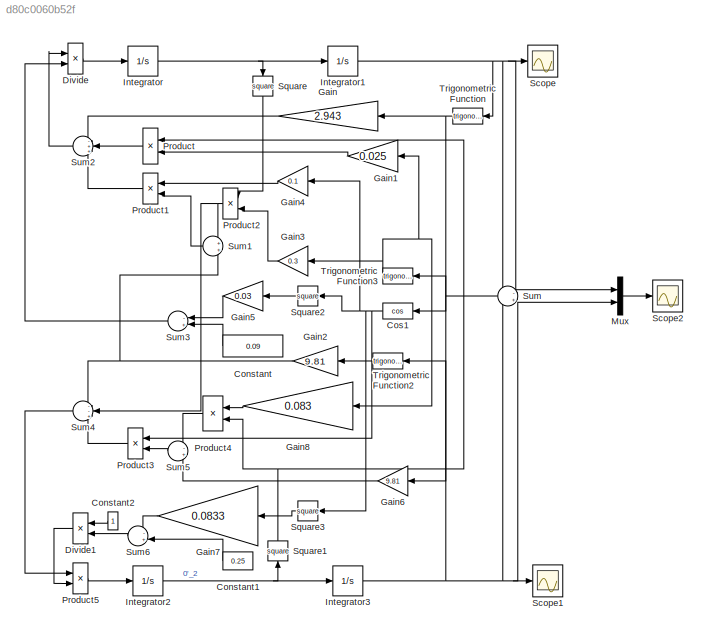
MODEL slx_d80c0060b52f
KIND model
CONFIG AbsTol = auto
CONFIG EnableMultiTasking = off
CONFIG FixedStep = auto
CONFIG MaxStep = auto
CONFIG MinStep = auto
CONFIG RelTol = 1e-3
CONFIG SampleTimeConstraint = Unconstrained
CONFIG SolverName = VariableStepAuto
CONFIG StartTime = 0.0
CONFIG StopTime = 10.0
BLOCK [Constant] Constant
  NameLocation = top
  Value = 0.09
BLOCK [Constant] Constant1
  NameLocation = top
  Value = 0.25
BLOCK [Constant] Constant2
  NameLocation = top
BLOCK [Trigonometry] Cos1
  NameLocation = top
  Operator = cos
BLOCK [Product] Divide
  Inputs = */
BLOCK [Product] Divide1
  Inputs = */
  NameLocation = top
BLOCK [Gain] Gain
  Gain = 2.943
  NameLocation = top
BLOCK [Gain] Gain1
  Gain = 0.025
  NameLocation = top
BLOCK [Gain] Gain2
  Gain = 9.81
  NameLocation = top
BLOCK [Gain] Gain3
  Gain = 0.3
  NameLocation = top
BLOCK [Gain] Gain4
  Gain = 0.1
  NameLocation = top
BLOCK [Gain] Gain5
  Gain = 0.03
  NameLocation = top
BLOCK [Gain] Gain6
  Gain = 9.81
  NameLocation = top
BLOCK [Gain] Gain7
  Gain = 0.0833
  NameLocation = top
BLOCK [Gain] Gain8
  Gain = 0.083
  NameLocation = top
BLOCK [Integrator] Integrator
BLOCK [Integrator] Integrator1
BLOCK [Integrator] Integrator2
BLOCK [Integrator] Integrator3
  InitialCondition = 0.35
BLOCK [Mux] Mux
  DisplayOption = bar
  Inputs = 2
BLOCK [Product] Product
  NameLocation = top
BLOCK [Product] Product1
  NameLocation = top
BLOCK [Product] Product2
  NameLocation = top
BLOCK [Product] Product3
  NameLocation = top
BLOCK [Product] Product4
  NameLocation = top
BLOCK [Product] Product5
BLOCK [Scope] Scope
  Floating = off
  NumInputPorts = 1
  ScopeSpecificationString = Simulink.scopes.TimeScopeBlockCfg('CurrentConfiguration', extmgr.ConfigurationSet(extmgr.Configuration('Core','General UI',true),extmgr.Configuration('Core','Source UI',true),extmgr.Configuration('Sources','WiredSimulink',true,'DataLoggingVariableName','ScopeData1'),extmgr.Configuration('Visuals','Time Domain',true,'SerializedDisplays',{struct('MinYLimReal','-0.22476','MaxYLimReal','0.22286','YLab...<+1391ch>
BLOCK [Scope] Scope1
  Floating = off
  NumInputPorts = 1
  ScopeSpecificationString = Simulink.scopes.TimeScopeBlockCfg('CurrentConfiguration', extmgr.ConfigurationSet(extmgr.Configuration('Core','General UI',true),extmgr.Configuration('Core','Source UI',true),extmgr.Configuration('Sources','WiredSimulink',true,'DataLoggingVariableName','ScopeData2'),extmgr.Configuration('Visuals','Time Domain',true,'SerializedDisplays',{struct('MinYLimReal','-0.43502','MaxYLimReal','0.43722','YLab...<+1399ch>
BLOCK [Scope] Scope2
  Floating = off
  NumInputPorts = 1
  ScopeSpecificationString = Simulink.scopes.TimeScopeBlockCfg('CurrentConfiguration', extmgr.ConfigurationSet(extmgr.Configuration('Core','General UI',true),extmgr.Configuration('Core','Source UI',true),extmgr.Configuration('Sources','WiredSimulink',true),extmgr.Configuration('Visuals','Time Domain',true,'SerializedDisplays',{struct('MinYLimReal','-0.73519','MaxYLimReal','0.76043','YLabelReal','','MinYLimMag','0.00000','MaxY...<+1558ch>
BLOCK [Math] Square
  NameLocation = left
  Operator = square
BLOCK [Math] Square1
  NameLocation = right
  Operator = square
BLOCK [Math] Square2
  NameLocation = top
  Operator = square
BLOCK [Math] Square3
  NameLocation = top
  Operator = square
BLOCK [Sum] Sum
  Inputs = -+
  NameLocation = top
BLOCK [Sum] Sum1
  NameLocation = top
BLOCK [Sum] Sum2
  Inputs = -++
  NameLocation = top
BLOCK [Sum] Sum3
  Inputs = -+
  NameLocation = top
BLOCK [Sum] Sum4
  Inputs = --+
  NameLocation = top
BLOCK [Sum] Sum5
  Inputs = -+
  NameLocation = top
BLOCK [Sum] Sum6
  Inputs = -+
  NameLocation = top
BLOCK [Trigonometry] Trigonometric Function
  NameLocation = top
BLOCK [Trigonometry] Trigonometric Function2
  NameLocation = top
BLOCK [Trigonometry] Trigonometric Function3
  NameLocation = top
LINE Constant1:1 -> Sum6:2
LINE Constant2:1 -> Divide1:1
LINE Constant:1 -> Sum3:2
NET Cos1:1 -> Gain4:1, Product3:1, Square2:1, Square3:1
LINE Divide1:1 -> Product5:2
LINE Divide:1 -> Integrator:1
LINE Gain1:1 -> Product:2
NET Gain2:1 -> Sum1:2, Sum4:1
LINE Gain3:1 -> Product2:2
LINE Gain4:1 -> Product1:1
LINE Gain5:1 -> Sum3:1
LINE Gain6:1 -> Sum5:2
LINE Gain7:1 -> Sum6:1
LINE Gain8:1 -> Product4:1
LINE Gain:1 -> Sum2:1
NET Integrator1:1 -> Mux:1, Scope:1, Sum:1, Trigonometric Function:1
NET Integrator2:1 -> Integrator3:1, Square1:1
NET Integrator3:1 -> Mux:2, Scope1:1, Sum:2, Trigonometric Function2:1
NET Integrator:1 -> Integrator1:1, Square:1
LINE Mux:1 -> Scope2:1
LINE Product1:1 -> Sum2:3
NET Product2:1 -> Sum1:1, Sum4:2
LINE Product3:1 -> Sum4:3
LINE Product4:1 -> Sum5:1
LINE Product5:1 -> Integrator2:1
LINE Product:1 -> Sum2:2
NET Square1:1 -> Product4:2, Product:1
LINE Square2:1 -> Gain5:1
LINE Square3:1 -> Gain7:1
LINE Square:1 -> Product2:1
LINE Sum1:1 -> Product1:2
LINE Sum2:1 -> Divide:1
LINE Sum3:1 -> Divide:2
LINE Sum4:1 -> Product5:1
LINE Sum5:1 -> Product3:2
LINE Sum6:1 -> Divide1:2
NET Sum:1 -> Cos1:1, Trigonometric Function3:1
LINE Trigonometric Function2:1 -> Gain2:1
NET Trigonometric Function3:1 -> Gain1:1, Gain3:1, Gain8:1
NET Trigonometric Function:1 -> Gain6:1, Gain:1
note: NET lines group one-source signal fan-out (src -> all destinations, sorted); 1:1 wires keep LINE
